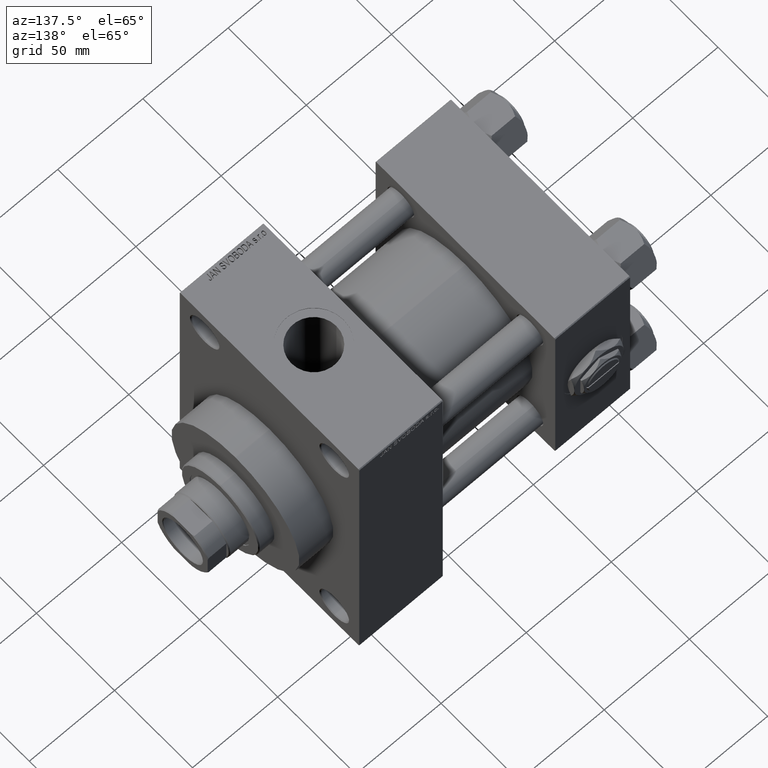
[diagram: clean part render]
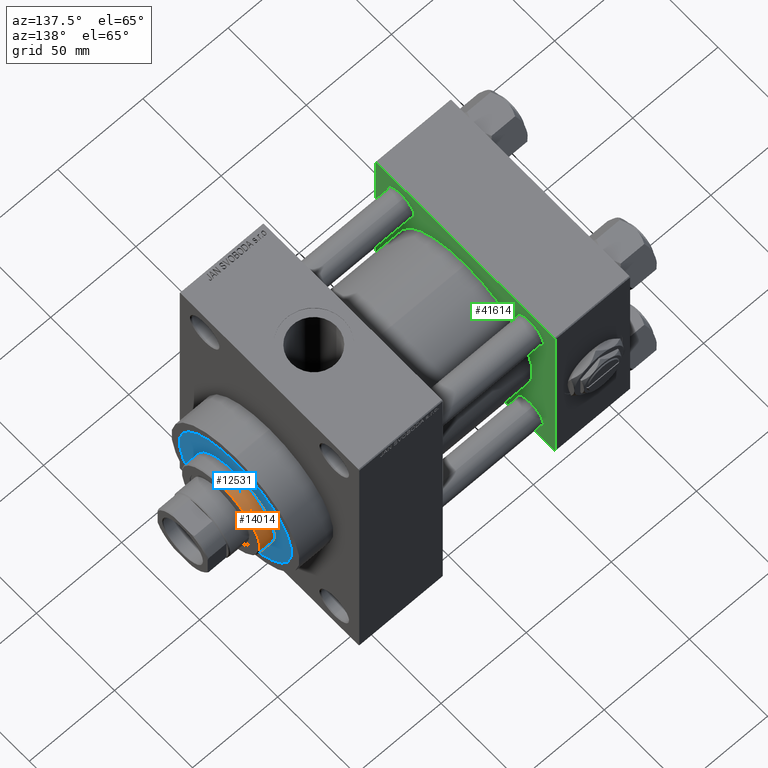
[diagram: same view with three faces highlighted in distinct colors, each labeled with its STEP entity id]
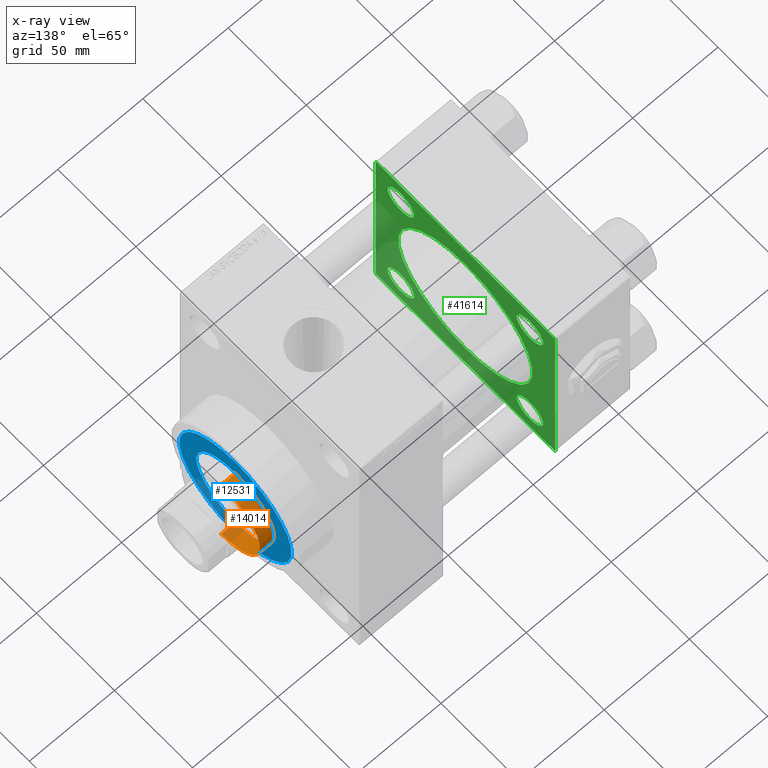
[diagram: x-ray of the same camera — body ghosted, the three highlighted faces saturated]
A machine part, auxiliary view with three faces highlighted in distinct colors.
The next image is the same camera in x-ray (body ghosted, the three faces saturated) — at least one of them is partly hidden behind the body in this view.
Their STEP definitions:

[orange] entity #14014 — the highlighted cylindrical surface (partial cylindrical patch) has radius 25 mm, axis along (-1, 0, 0).
#2336 = VERTEX_POINT ( 'NONE', #20121 ) ;
#2460 = VERTEX_POINT ( 'NONE', #9895 ) ;
#3674 = CARTESIAN_POINT ( 'NONE',  ( 25.00000000000000000, 3.061616997868383043E-15, 51.75999999999996959 ) ) ;
#4010 = AXIS2_PLACEMENT_3D ( 'NONE', #45010, #44765, #22153 ) ;
#4441 = EDGE_CURVE ( 'NONE', #22891, #2460, #11147, .T. ) ;
#4942 = ORIENTED_EDGE ( 'NONE', *, *, #16524, .T. ) ;
#5300 = FACE_OUTER_BOUND ( 'NONE', #32764, .T. ) ;
#6375 = CARTESIAN_POINT ( 'NONE',  ( 0.000000000000000000, 0.000000000000000000, 43.25999999999999801 ) ) ;
#8787 = DIRECTION ( 'NONE',  ( -0.000000000000000000, -0.000000000000000000, -1.000000000000000000 ) ) ;
#8859 = ORIENTED_EDGE ( 'NONE', *, *, #34826, .F. ) ;
#9780 = LINE ( 'NONE', #24953, #38512 ) ;
#9895 = CARTESIAN_POINT ( 'NONE',  ( -25.00000000000000000, 0.000000000000000000, 51.75999999999996959 ) ) ;
#11147 = CIRCLE ( 'NONE', #4010, 25.00000000000000000 ) ;
#14014 = ADVANCED_FACE ( 'NONE', ( #5300 ), #42338, .T. ) ;
#15210 = VERTEX_POINT ( 'NONE', #25371 ) ;
#16524 = EDGE_CURVE ( 'NONE', #2460, #2336, #39113, .T. ) ;
#18551 = DIRECTION ( 'NONE',  ( 0.000000000000000000, 0.000000000000000000, 1.000000000000000000 ) ) ;
#20004 = DIRECTION ( 'NONE',  ( -0.000000000000000000, -0.000000000000000000, -1.000000000000000000 ) ) ;
#20121 = CARTESIAN_POINT ( 'NONE',  ( -25.00000000000000000, 0.000000000000000000, 43.25999999999999801 ) ) ;
#20230 = CARTESIAN_POINT ( 'NONE',  ( 0.000000000000000000, 0.000000000000000000, 52.25999999999999801 ) ) ;
#22153 = DIRECTION ( 'NONE',  ( 1.000000000000000000, 0.000000000000000000, 0.000000000000000000 ) ) ;
#22891 = VERTEX_POINT ( 'NONE', #3674 ) ;
#24953 = CARTESIAN_POINT ( 'NONE',  ( 25.00000000000000000, 3.061616997868383043E-15, 52.25999999999999801 ) ) ;
#25371 = CARTESIAN_POINT ( 'NONE',  ( 25.00000000000000000, 3.061616997868383043E-15, 43.25999999999999801 ) ) ;
#27263 = AXIS2_PLACEMENT_3D ( 'NONE', #20230, #8787, #39092 ) ;
#28252 = EDGE_CURVE ( 'NONE', #2336, #15210, #48574, .T. ) ;
#32764 = EDGE_LOOP ( 'NONE', ( #8859, #38927, #4942, #48342 ) ) ;
#34826 = EDGE_CURVE ( 'NONE', #22891, #15210, #9780, .T. ) ;
#34908 = CARTESIAN_POINT ( 'NONE',  ( -25.00000000000000000, 0.000000000000000000, 52.25999999999999801 ) ) ;
#36043 = VECTOR ( 'NONE', #20004, 1000.000000000000000 ) ;
#38512 = VECTOR ( 'NONE', #40096, 1000.000000000000000 ) ;
#38927 = ORIENTED_EDGE ( 'NONE', *, *, #4441, .T. ) ;
#39092 = DIRECTION ( 'NONE',  ( -1.000000000000000000, 0.000000000000000000, 0.000000000000000000 ) ) ;
#39113 = LINE ( 'NONE', #34908, #36043 ) ;
#40096 = DIRECTION ( 'NONE',  ( -0.000000000000000000, -0.000000000000000000, -1.000000000000000000 ) ) ;
#41899 = DIRECTION ( 'NONE',  ( 1.000000000000000000, 0.000000000000000000, 0.000000000000000000 ) ) ;
#42338 = CYLINDRICAL_SURFACE ( 'NONE', #27263, 25.00000000000000000 ) ;
#44634 = AXIS2_PLACEMENT_3D ( 'NONE', #6375, #18551, #41899 ) ;
#44765 = DIRECTION ( 'NONE',  ( 0.000000000000000000, 0.000000000000000000, -1.000000000000000000 ) ) ;
#45010 = CARTESIAN_POINT ( 'NONE',  ( 0.000000000000000000, 0.000000000000000000, 51.75999999999996959 ) ) ;
#48342 = ORIENTED_EDGE ( 'NONE', *, *, #28252, .T. ) ;
#48574 = CIRCLE ( 'NONE', #44634, 25.00000000000000000 ) ;

[blue] entity #12531 — the highlighted planar face has unit normal (1, -0, -0).
#441 = VERTEX_POINT ( 'NONE', #49103 ) ;
#2336 = VERTEX_POINT ( 'NONE', #20121 ) ;
#3146 = CARTESIAN_POINT ( 'NONE',  ( 0.000000000000000000, 0.000000000000000000, 43.25999999999999801 ) ) ;
#5073 = CIRCLE ( 'NONE', #28101, 25.00000000000000000 ) ;
#6375 = CARTESIAN_POINT ( 'NONE',  ( 0.000000000000000000, 0.000000000000000000, 43.25999999999999801 ) ) ;
#8407 = EDGE_LOOP ( 'NONE', ( #26533, #18103 ) ) ;
#8617 = CARTESIAN_POINT ( 'NONE',  ( 36.00000000000000000, 4.408728476930470856E-15, 43.25999999999999801 ) ) ;
#9014 = DIRECTION ( 'NONE',  ( 1.000000000000000000, 0.000000000000000000, 0.000000000000000000 ) ) ;
#12531 = ADVANCED_FACE ( 'NONE', ( #42144, #14833 ), #29996, .T. ) ;
#14339 = CIRCLE ( 'NONE', #47683, 36.00000000000000000 ) ;
#14833 = FACE_OUTER_BOUND ( 'NONE', #8407, .T. ) ;
#15210 = VERTEX_POINT ( 'NONE', #25371 ) ;
#15573 = DIRECTION ( 'NONE',  ( 0.000000000000000000, 0.000000000000000000, 1.000000000000000000 ) ) ;
#15684 = ORIENTED_EDGE ( 'NONE', *, *, #28252, .F. ) ;
#16494 = ORIENTED_EDGE ( 'NONE', *, *, #18969, .F. ) ;
#18103 = ORIENTED_EDGE ( 'NONE', *, *, #24531, .T. ) ;
#18551 = DIRECTION ( 'NONE',  ( 0.000000000000000000, 0.000000000000000000, 1.000000000000000000 ) ) ;
#18969 = EDGE_CURVE ( 'NONE', #15210, #2336, #5073, .T. ) ;
#18980 = DIRECTION ( 'NONE',  ( 1.000000000000000000, 0.000000000000000000, 0.000000000000000000 ) ) ;
#19299 = DIRECTION ( 'NONE',  ( 1.000000000000000000, 0.000000000000000000, -0.000000000000000000 ) ) ;
#20121 = CARTESIAN_POINT ( 'NONE',  ( -25.00000000000000000, 0.000000000000000000, 43.25999999999999801 ) ) ;
#24531 = EDGE_CURVE ( 'NONE', #39033, #441, #14339, .T. ) ;
#25371 = CARTESIAN_POINT ( 'NONE',  ( 25.00000000000000000, 3.061616997868383043E-15, 43.25999999999999801 ) ) ;
#26533 = ORIENTED_EDGE ( 'NONE', *, *, #35562, .T. ) ;
#28101 = AXIS2_PLACEMENT_3D ( 'NONE', #49039, #45069, #18980 ) ;
#28252 = EDGE_CURVE ( 'NONE', #2336, #15210, #48574, .T. ) ;
#28752 = AXIS2_PLACEMENT_3D ( 'NONE', #34207, #15573, #19299 ) ;
#29996 = PLANE ( 'NONE',  #28752 ) ;
#34207 = CARTESIAN_POINT ( 'NONE',  ( 0.000000000000000000, 0.000000000000000000, 43.25999999999999801 ) ) ;
#35562 = EDGE_CURVE ( 'NONE', #441, #39033, #37730, .T. ) ;
#37730 = CIRCLE ( 'NONE', #42516, 36.00000000000000000 ) ;
#39033 = VERTEX_POINT ( 'NONE', #8617 ) ;
#41899 = DIRECTION ( 'NONE',  ( 1.000000000000000000, 0.000000000000000000, 0.000000000000000000 ) ) ;
#41912 = DIRECTION ( 'NONE',  ( 0.000000000000000000, 0.000000000000000000, 1.000000000000000000 ) ) ;
#42144 = FACE_BOUND ( 'NONE', #48132, .T. ) ;
#42326 = DIRECTION ( 'NONE',  ( 0.000000000000000000, 0.000000000000000000, 1.000000000000000000 ) ) ;
#42516 = AXIS2_PLACEMENT_3D ( 'NONE', #3146, #41912, #45397 ) ;
#43056 = CARTESIAN_POINT ( 'NONE',  ( 0.000000000000000000, 0.000000000000000000, 43.25999999999999801 ) ) ;
#44634 = AXIS2_PLACEMENT_3D ( 'NONE', #6375, #18551, #41899 ) ;
#45069 = DIRECTION ( 'NONE',  ( 0.000000000000000000, 0.000000000000000000, 1.000000000000000000 ) ) ;
#45397 = DIRECTION ( 'NONE',  ( 1.000000000000000000, 0.000000000000000000, 0.000000000000000000 ) ) ;
#47683 = AXIS2_PLACEMENT_3D ( 'NONE', #43056, #42326, #9014 ) ;
#48132 = EDGE_LOOP ( 'NONE', ( #15684, #16494 ) ) ;
#48574 = CIRCLE ( 'NONE', #44634, 25.00000000000000000 ) ;
#49039 = CARTESIAN_POINT ( 'NONE',  ( 0.000000000000000000, 0.000000000000000000, 43.25999999999999801 ) ) ;
#49103 = CARTESIAN_POINT ( 'NONE',  ( -36.00000000000000000, 0.000000000000000000, 43.25999999999999801 ) ) ;

[green] entity #41614 — the highlighted planar face has unit normal (-1, 0, 0).
#1194 = CARTESIAN_POINT ( 'NONE',  ( 44.00000000000000000, 57.00000000000002132, -57.49999999999999289 ) ) ;
#2354 = ORIENTED_EDGE ( 'NONE', *, *, #20345, .T. ) ;
#2556 = AXIS2_PLACEMENT_3D ( 'NONE', #23025, #42139, #4126 ) ;
#2717 = CIRCLE ( 'NONE', #13830, 43.00000000000000000 ) ;
#2769 = CIRCLE ( 'NONE', #31395, 8.500000000000090594 ) ;
#3053 = CARTESIAN_POINT ( 'NONE',  ( 44.00000000000000000, 41.34999999999999432, 41.35000000000000142 ) ) ;
#3139 = AXIS2_PLACEMENT_3D ( 'NONE', #35517, #12895, #31062 ) ;
#3426 = EDGE_LOOP ( 'NONE', ( #46150, #17293 ) ) ;
#3463 = CIRCLE ( 'NONE', #41574, 8.500000000000090594 ) ;
#3532 = VERTEX_POINT ( 'NONE', #1194 ) ;
#3700 = AXIS2_PLACEMENT_3D ( 'NONE', #13283, #24962, #29183 ) ;
#3840 = VERTEX_POINT ( 'NONE', #37901 ) ;
#4126 = DIRECTION ( 'NONE',  ( 0.000000000000000000, 0.000000000000000000, 1.000000000000000000 ) ) ;
#4224 = CARTESIAN_POINT ( 'NONE',  ( 44.00000000000000000, 41.34999999999999432, 49.85000000000009379 ) ) ;
#4387 = VECTOR ( 'NONE', #32897, 1000.000000000000000 ) ;
#4710 = CARTESIAN_POINT ( 'NONE',  ( 44.00000000000000000, -57.50000000000000711, 57.49999999999999289 ) ) ;
#4868 = DIRECTION ( 'NONE',  ( -1.000000000000000000, 0.000000000000000000, -0.000000000000000000 ) ) ;
#5645 = CARTESIAN_POINT ( 'NONE',  ( 44.00000000000000000, 41.34999999999999432, -49.85000000000009379 ) ) ;
#5879 = ORIENTED_EDGE ( 'NONE', *, *, #8499, .T. ) ;
#6141 = CIRCLE ( 'NONE', #7720, 43.00000000000000000 ) ;
#6208 = DIRECTION ( 'NONE',  ( 0.000000000000000000, 0.000000000000000000, 1.000000000000000000 ) ) ;
#6918 = VECTOR ( 'NONE', #12938, 1000.000000000000114 ) ;
#7031 = EDGE_CURVE ( 'NONE', #3840, #39666, #43627, .T. ) ;
#7720 = AXIS2_PLACEMENT_3D ( 'NONE', #22778, #34697, #27002 ) ;
#7947 = DIRECTION ( 'NONE',  ( 0.000000000000000000, 0.000000000000000000, -1.000000000000000000 ) ) ;
#8190 = EDGE_LOOP ( 'NONE', ( #2354, #19058 ) ) ;
#8323 = VERTEX_POINT ( 'NONE', #13499 ) ;
#8499 = EDGE_CURVE ( 'NONE', #19416, #25752, #21467, .T. ) ;
#9358 = VERTEX_POINT ( 'NONE', #14242 ) ;
#12061 = LINE ( 'NONE', #45863, #14311 ) ;
#12247 = CIRCLE ( 'NONE', #18594, 8.500000000000090594 ) ;
#12451 = CARTESIAN_POINT ( 'NONE',  ( 44.00000000000000000, 57.49999999999999289, -57.00000000000000711 ) ) ;
#12687 = LINE ( 'NONE', #47686, #46558 ) ;
#12802 = CARTESIAN_POINT ( 'NONE',  ( 44.00000000000000000, -41.34999999999998721, 41.35000000000000853 ) ) ;
#12862 = ORIENTED_EDGE ( 'NONE', *, *, #25841, .F. ) ;
#12895 = DIRECTION ( 'NONE',  ( -1.000000000000000000, 0.000000000000000000, -0.000000000000000000 ) ) ;
#12938 = DIRECTION ( 'NONE',  ( -0.000000000000000000, 0.7071067811865376918, 0.7071067811865573427 ) ) ;
#13013 = VECTOR ( 'NONE', #23457, 1000.000000000000114 ) ;
#13283 = CARTESIAN_POINT ( 'NONE',  ( 44.00000000000000000, 0.000000000000000000, 0.000000000000000000 ) ) ;
#13421 = DIRECTION ( 'NONE',  ( 0.000000000000000000, 0.000000000000000000, 1.000000000000000000 ) ) ;
#13499 = CARTESIAN_POINT ( 'NONE',  ( 44.00000000000000000, -57.00000000000000711, -57.50000000000000711 ) ) ;
#13766 = FACE_OUTER_BOUND ( 'NONE', #32724, .T. ) ;
#13830 = AXIS2_PLACEMENT_3D ( 'NONE', #17882, #17631, #13421 ) ;
#14242 = CARTESIAN_POINT ( 'NONE',  ( 44.00000000000000000, -41.34999999999998721, -32.84999999999992326 ) ) ;
#14311 = VECTOR ( 'NONE', #31449, 1000.000000000000000 ) ;
#15115 = EDGE_CURVE ( 'NONE', #9358, #33983, #39970, .T. ) ;
#15140 = EDGE_CURVE ( 'NONE', #17126, #27787, #34840, .T. ) ;
#15188 = EDGE_LOOP ( 'NONE', ( #27053, #24846 ) ) ;
#15400 = VERTEX_POINT ( 'NONE', #35037 ) ;
#15955 = CARTESIAN_POINT ( 'NONE',  ( 44.00000000000000000, 57.00000000000000711, 57.50000000000000711 ) ) ;
#15974 = DIRECTION ( 'NONE',  ( 0.000000000000000000, 0.000000000000000000, 1.000000000000000000 ) ) ;
#16133 = CARTESIAN_POINT ( 'NONE',  ( 44.00000000000000000, 57.49999999999999289, -57.49999999999999289 ) ) ;
#16614 = LINE ( 'NONE', #4710, #32093 ) ;
#16946 = AXIS2_PLACEMENT_3D ( 'NONE', #19694, #31373, #31123 ) ;
#17002 = FACE_BOUND ( 'NONE', #15188, .T. ) ;
#17126 = VERTEX_POINT ( 'NONE', #33078 ) ;
#17247 = PLANE ( 'NONE',  #3700 ) ;
#17293 = ORIENTED_EDGE ( 'NONE', *, *, #42438, .F. ) ;
#17381 = CARTESIAN_POINT ( 'NONE',  ( 44.00000000000000000, 57.00000000000000711, 57.50000000000000711 ) ) ;
#17472 = CARTESIAN_POINT ( 'NONE',  ( 44.00000000000000000, -2.602085213965210642E-15, 43.00000000000000000 ) ) ;
#17485 = CARTESIAN_POINT ( 'NONE',  ( 44.00000000000000000, -57.50000000000000711, 57.00000000000000711 ) ) ;
#17631 = DIRECTION ( 'NONE',  ( 1.000000000000000000, -0.000000000000000000, 0.000000000000000000 ) ) ;
#17676 = CARTESIAN_POINT ( 'NONE',  ( 44.00000000000000000, 41.34999999999999432, -32.84999999999991616 ) ) ;
#17882 = CARTESIAN_POINT ( 'NONE',  ( 44.00000000000000000, -2.602085213965210642E-15, 0.000000000000000000 ) ) ;
#18109 = ORIENTED_EDGE ( 'NONE', *, *, #43005, .T. ) ;
#18507 = CARTESIAN_POINT ( 'NONE',  ( 44.00000000000000000, -57.50000000000000711, -57.00000000000000711 ) ) ;
#18550 = CARTESIAN_POINT ( 'NONE',  ( 44.00000000000000000, -41.34999999999998721, 49.85000000000010090 ) ) ;
#18594 = AXIS2_PLACEMENT_3D ( 'NONE', #43729, #21372, #6208 ) ;
#18648 = AXIS2_PLACEMENT_3D ( 'NONE', #46050, #19957, #15974 ) ;
#19008 = ORIENTED_EDGE ( 'NONE', *, *, #19063, .T. ) ;
#19058 = ORIENTED_EDGE ( 'NONE', *, *, #37788, .T. ) ;
#19063 = EDGE_CURVE ( 'NONE', #44456, #8323, #42319, .T. ) ;
#19416 = VERTEX_POINT ( 'NONE', #18550 ) ;
#19538 = EDGE_CURVE ( 'NONE', #25752, #19416, #3463, .T. ) ;
#19694 = CARTESIAN_POINT ( 'NONE',  ( 44.00000000000000000, -41.34999999999998721, -41.35000000000000853 ) ) ;
#19896 = AXIS2_PLACEMENT_3D ( 'NONE', #33615, #28914, #21449 ) ;
#19957 = DIRECTION ( 'NONE',  ( -1.000000000000000000, 0.000000000000000000, -0.000000000000000000 ) ) ;
#19971 = VECTOR ( 'NONE', #35271, 1000.000000000000000 ) ;
#20286 = EDGE_CURVE ( 'NONE', #40466, #38257, #2717, .T. ) ;
#20345 = EDGE_CURVE ( 'NONE', #28089, #42889, #12247, .T. ) ;
#20991 = FACE_BOUND ( 'NONE', #36905, .T. ) ;
#21204 = ORIENTED_EDGE ( 'NONE', *, *, #41927, .T. ) ;
#21372 = DIRECTION ( 'NONE',  ( -1.000000000000000000, 0.000000000000000000, -0.000000000000000000 ) ) ;
#21449 = DIRECTION ( 'NONE',  ( 0.000000000000000000, 0.000000000000000000, 1.000000000000000000 ) ) ;
#21467 = CIRCLE ( 'NONE', #19896, 8.500000000000090594 ) ;
#21873 = EDGE_CURVE ( 'NONE', #24218, #44456, #16614, .T. ) ;
#21896 = CARTESIAN_POINT ( 'NONE',  ( 44.00000000000000000, -41.34999999999998721, -49.85000000000010090 ) ) ;
#21968 = FACE_BOUND ( 'NONE', #47634, .T. ) ;
#22091 = ORIENTED_EDGE ( 'NONE', *, *, #7031, .T. ) ;
#22201 = DIRECTION ( 'NONE',  ( 0.000000000000000000, 0.000000000000000000, 1.000000000000000000 ) ) ;
#22778 = CARTESIAN_POINT ( 'NONE',  ( 44.00000000000000000, -2.602085213965210642E-15, 0.000000000000000000 ) ) ;
#23025 = CARTESIAN_POINT ( 'NONE',  ( 44.00000000000000000, -41.34999999999998721, -41.35000000000000853 ) ) ;
#23224 = CIRCLE ( 'NONE', #2556, 8.500000000000090594 ) ;
#23334 = CARTESIAN_POINT ( 'NONE',  ( 44.00000000000000000, -57.00000000000003553, 57.49999999999999289 ) ) ;
#23457 = DIRECTION ( 'NONE',  ( 0.000000000000000000, 0.7071067811865474617, -0.7071067811865474617 ) ) ;
#24115 = ORIENTED_EDGE ( 'NONE', *, *, #34765, .T. ) ;
#24116 = EDGE_CURVE ( 'NONE', #27787, #28005, #12061, .T. ) ;
#24218 = VERTEX_POINT ( 'NONE', #17485 ) ;
#24603 = CARTESIAN_POINT ( 'NONE',  ( 44.00000000000000000, -57.00000000000000711, -57.50000000000000711 ) ) ;
#24846 = ORIENTED_EDGE ( 'NONE', *, *, #15115, .T. ) ;
#24962 = DIRECTION ( 'NONE',  ( -1.000000000000000000, 0.000000000000000000, -0.000000000000000000 ) ) ;
#25752 = VERTEX_POINT ( 'NONE', #33792 ) ;
#25841 = EDGE_CURVE ( 'NONE', #3532, #8323, #27814, .T. ) ;
#27002 = DIRECTION ( 'NONE',  ( 0.000000000000000000, 0.000000000000000000, 1.000000000000000000 ) ) ;
#27053 = ORIENTED_EDGE ( 'NONE', *, *, #28266, .T. ) ;
#27453 = ORIENTED_EDGE ( 'NONE', *, *, #34864, .F. ) ;
#27460 = ORIENTED_EDGE ( 'NONE', *, *, #19538, .T. ) ;
#27787 = VERTEX_POINT ( 'NONE', #17381 ) ;
#27814 = LINE ( 'NONE', #16133, #19971 ) ;
#28005 = VERTEX_POINT ( 'NONE', #23334 ) ;
#28089 = VERTEX_POINT ( 'NONE', #5645 ) ;
#28266 = EDGE_CURVE ( 'NONE', #33983, #9358, #23224, .T. ) ;
#28448 = FACE_BOUND ( 'NONE', #8190, .T. ) ;
#28914 = DIRECTION ( 'NONE',  ( -1.000000000000000000, 0.000000000000000000, -0.000000000000000000 ) ) ;
#28931 = LINE ( 'NONE', #36371, #4387 ) ;
#29183 = DIRECTION ( 'NONE',  ( -0.000000000000000000, 0.000000000000000000, 1.000000000000000000 ) ) ;
#30629 = CARTESIAN_POINT ( 'NONE',  ( 44.00000000000000000, 2.663896022368408223E-15, -43.00000000000000000 ) ) ;
#31062 = DIRECTION ( 'NONE',  ( 0.000000000000000000, 0.000000000000000000, 1.000000000000000000 ) ) ;
#31123 = DIRECTION ( 'NONE',  ( 0.000000000000000000, 0.000000000000000000, 1.000000000000000000 ) ) ;
#31373 = DIRECTION ( 'NONE',  ( -1.000000000000000000, 0.000000000000000000, -0.000000000000000000 ) ) ;
#31395 = AXIS2_PLACEMENT_3D ( 'NONE', #3053, #33381, #22201 ) ;
#31449 = DIRECTION ( 'NONE',  ( 0.000000000000000000, -1.000000000000000000, -1.206764157201257045E-16 ) ) ;
#32093 = VECTOR ( 'NONE', #7947, 1000.000000000000000 ) ;
#32171 = FACE_BOUND ( 'NONE', #3426, .T. ) ;
#32179 = DIRECTION ( 'NONE',  ( 0.000000000000000000, 0.000000000000000000, 1.000000000000000000 ) ) ;
#32724 = EDGE_LOOP ( 'NONE', ( #12862, #18109, #27453, #32950, #47278, #21204, #47785, #19008 ) ) ;
#32897 = DIRECTION ( 'NONE',  ( 0.000000000000000000, 0.000000000000000000, -1.000000000000000000 ) ) ;
#32950 = ORIENTED_EDGE ( 'NONE', *, *, #15140, .T. ) ;
#33078 = CARTESIAN_POINT ( 'NONE',  ( 44.00000000000000000, 57.49999999999999289, 57.00000000000003553 ) ) ;
#33381 = DIRECTION ( 'NONE',  ( -1.000000000000000000, 0.000000000000000000, -0.000000000000000000 ) ) ;
#33615 = CARTESIAN_POINT ( 'NONE',  ( 44.00000000000000000, -41.34999999999998721, 41.35000000000000853 ) ) ;
#33792 = CARTESIAN_POINT ( 'NONE',  ( 44.00000000000000000, -41.34999999999998721, 32.84999999999992326 ) ) ;
#33983 = VERTEX_POINT ( 'NONE', #21896 ) ;
#34547 = CIRCLE ( 'NONE', #18648, 8.500000000000090594 ) ;
#34697 = DIRECTION ( 'NONE',  ( 1.000000000000000000, -0.000000000000000000, 0.000000000000000000 ) ) ;
#34765 = EDGE_CURVE ( 'NONE', #39666, #3840, #2769, .T. ) ;
#34840 = LINE ( 'NONE', #15955, #40750 ) ;
#34864 = EDGE_CURVE ( 'NONE', #17126, #15400, #28931, .T. ) ;
#35037 = CARTESIAN_POINT ( 'NONE',  ( 44.00000000000000000, 57.49999999999999289, -57.00000000000000711 ) ) ;
#35271 = DIRECTION ( 'NONE',  ( 0.000000000000000000, -1.000000000000000000, -1.206764157201257045E-16 ) ) ;
#35517 = CARTESIAN_POINT ( 'NONE',  ( 44.00000000000000000, 41.34999999999999432, 41.35000000000000142 ) ) ;
#36371 = CARTESIAN_POINT ( 'NONE',  ( 44.00000000000000000, 57.49999999999999289, 57.50000000000000711 ) ) ;
#36905 = EDGE_LOOP ( 'NONE', ( #27460, #5879 ) ) ;
#37788 = EDGE_CURVE ( 'NONE', #42889, #28089, #34547, .T. ) ;
#37901 = CARTESIAN_POINT ( 'NONE',  ( 44.00000000000000000, 41.34999999999999432, 32.84999999999991616 ) ) ;
#38257 = VERTEX_POINT ( 'NONE', #30629 ) ;
#38564 = DIRECTION ( 'NONE',  ( 0.000000000000000000, -0.7071067811865573427, 0.7071067811865376918 ) ) ;
#39027 = LINE ( 'NONE', #12451, #6918 ) ;
#39666 = VERTEX_POINT ( 'NONE', #4224 ) ;
#39741 = DIRECTION ( 'NONE',  ( -0.000000000000000000, -0.7071067811865376918, -0.7071067811865573427 ) ) ;
#39970 = CIRCLE ( 'NONE', #16946, 8.500000000000090594 ) ;
#40466 = VERTEX_POINT ( 'NONE', #17472 ) ;
#40750 = VECTOR ( 'NONE', #38564, 1000.000000000000114 ) ;
#41574 = AXIS2_PLACEMENT_3D ( 'NONE', #12802, #4868, #32179 ) ;
#41614 = ADVANCED_FACE ( 'NONE', ( #17002, #28448, #20991, #21968, #32171, #13766 ), #17247, .F. ) ;
#41927 = EDGE_CURVE ( 'NONE', #28005, #24218, #12687, .T. ) ;
#42139 = DIRECTION ( 'NONE',  ( -1.000000000000000000, 0.000000000000000000, -0.000000000000000000 ) ) ;
#42319 = LINE ( 'NONE', #24603, #13013 ) ;
#42438 = EDGE_CURVE ( 'NONE', #38257, #40466, #6141, .T. ) ;
#42889 = VERTEX_POINT ( 'NONE', #17676 ) ;
#43005 = EDGE_CURVE ( 'NONE', #3532, #15400, #39027, .T. ) ;
#43627 = CIRCLE ( 'NONE', #3139, 8.500000000000090594 ) ;
#43729 = CARTESIAN_POINT ( 'NONE',  ( 44.00000000000000000, 41.34999999999999432, -41.35000000000000142 ) ) ;
#44456 = VERTEX_POINT ( 'NONE', #18507 ) ;
#45863 = CARTESIAN_POINT ( 'NONE',  ( 44.00000000000000000, 57.49999999999999289, 57.50000000000000711 ) ) ;
#46050 = CARTESIAN_POINT ( 'NONE',  ( 44.00000000000000000, 41.34999999999999432, -41.35000000000000142 ) ) ;
#46150 = ORIENTED_EDGE ( 'NONE', *, *, #20286, .F. ) ;
#46558 = VECTOR ( 'NONE', #39741, 1000.000000000000114 ) ;
#47278 = ORIENTED_EDGE ( 'NONE', *, *, #24116, .T. ) ;
#47634 = EDGE_LOOP ( 'NONE', ( #22091, #24115 ) ) ;
#47686 = CARTESIAN_POINT ( 'NONE',  ( 44.00000000000000000, -57.50000000000000711, 57.00000000000000711 ) ) ;
#47785 = ORIENTED_EDGE ( 'NONE', *, *, #21873, .T. ) ;